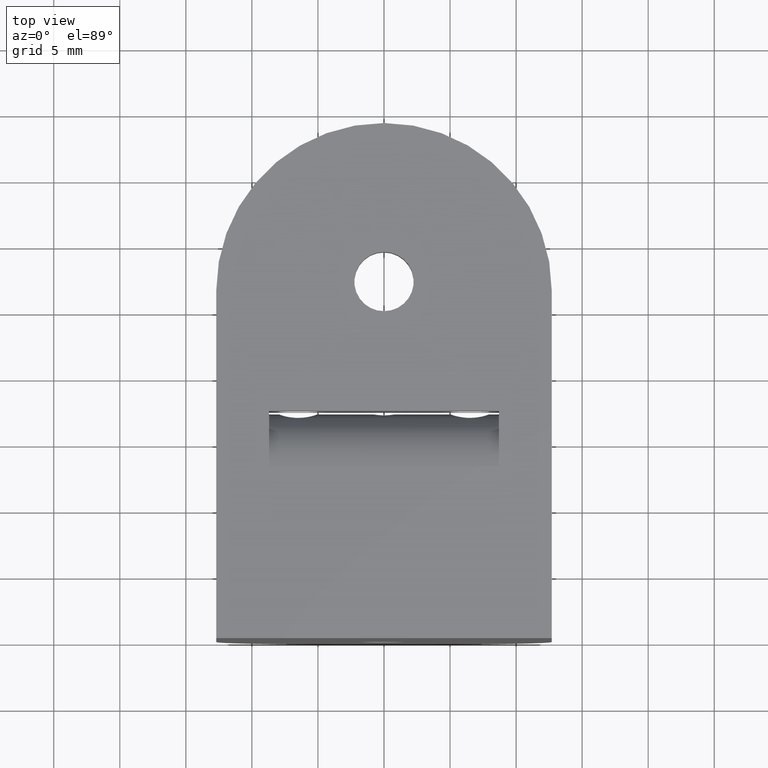
[diagram: clean part render]
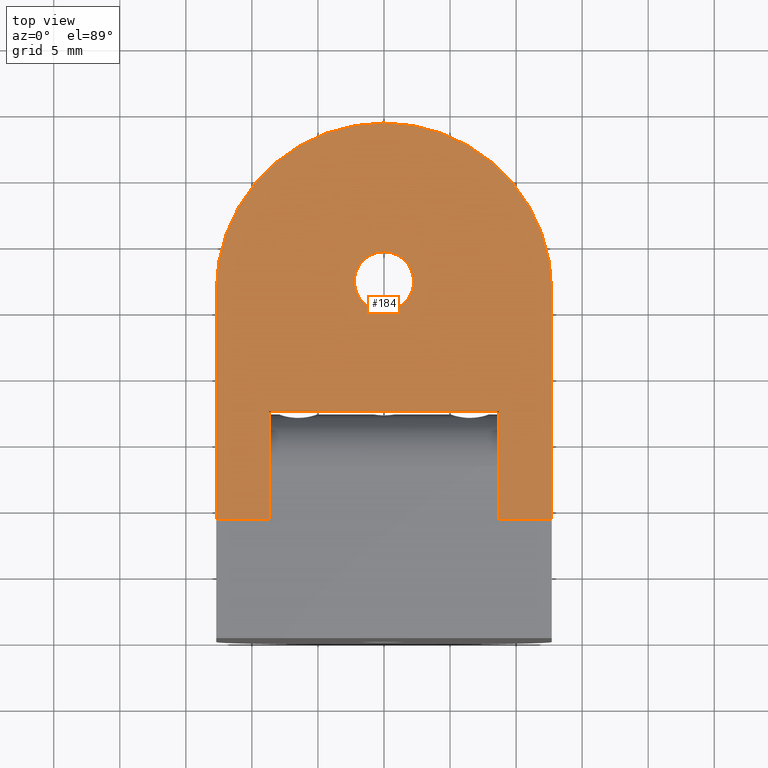
[diagram: same view with one face highlighted and labeled with its STEP entity id]
A machine part, top view. The second image highlights one B-rep face of the part: STEP entity #184.
In plain terms, the highlighted planar face has unit normal (0, -0, 1).
Its self-contained STEP definition (entity closure, byte-faithful):
#24 = VERTEX_POINT ( 'NONE', #1323 ) ;
#29 = CARTESIAN_POINT ( 'NONE',  ( -8.699999999999985100, 8.999999999999996400, 3.469446951953614200E-015 ) ) ;
#50 = AXIS2_PLACEMENT_3D ( 'NONE', #2465, #1046, #2704 ) ;
#62 = VERTEX_POINT ( 'NONE', #1346 ) ;
#133 = DIRECTION ( 'NONE',  ( -1.734720147809981100E-016, -1.206061786844441000E-031, -1.000000000000000000 ) ) ;
#184 = ADVANCED_FACE ( 'NONE', ( #1511, #291 ), #2815, .T. ) ;
#206 = CARTESIAN_POINT ( 'NONE',  ( -8.699999999999983300, 17.19999999999999200, 3.469446951953614200E-015 ) ) ;
#235 = CARTESIAN_POINT ( 'NONE',  ( -12.69999999999999200, 8.999999999999996400, 3.469446951953614200E-015 ) ) ;
#261 = VECTOR ( 'NONE', #1467, 1000.000000000000000 ) ;
#291 = FACE_OUTER_BOUND ( 'NONE', #2915, .T. ) ;
#338 = CARTESIAN_POINT ( 'NONE',  ( -12.69999999999999200, 8.999999999999996400, 3.469446951953614200E-015 ) ) ;
#380 = VERTEX_POINT ( 'NONE', #2231 ) ;
#436 = AXIS2_PLACEMENT_3D ( 'NONE', #1939, #523, #2874 ) ;
#442 = DIRECTION ( 'NONE',  ( 1.000000000000000000, -1.738121547108111300E-016, -1.734720147809985500E-016 ) ) ;
#493 = ORIENTED_EDGE ( 'NONE', *, *, #1977, .T. ) ;
#519 = VERTEX_POINT ( 'NONE', #206 ) ;
#523 = DIRECTION ( 'NONE',  ( 1.734720147809981100E-016, -1.507577233555550300E-031, 1.000000000000000000 ) ) ;
#551 = LINE ( 'NONE', #235, #1733 ) ;
#629 = VERTEX_POINT ( 'NONE', #29 ) ;
#644 = ORIENTED_EDGE ( 'NONE', *, *, #2673, .F. ) ;
#662 = DIRECTION ( 'NONE',  ( -1.000000000000000000, 7.411540321789116800E-017, 1.734720147809985500E-016 ) ) ;
#710 = CARTESIAN_POINT ( 'NONE',  ( 8.700000000000015300, 17.19999999999999200, 0.0000000000000000000 ) ) ;
#742 = CARTESIAN_POINT ( 'NONE',  ( -12.69999999999998500, 26.30000000000000400, 3.469446951953614200E-015 ) ) ;
#774 = CIRCLE ( 'NONE', #50, 12.69999999999999900 ) ;
#807 = VERTEX_POINT ( 'NONE', #338 ) ;
#808 = CIRCLE ( 'NONE', #2279, 2.247899999999996900 ) ;
#858 = EDGE_CURVE ( 'NONE', #1979, #519, #1841, .T. ) ;
#866 = DIRECTION ( 'NONE',  ( -4.051086181743855900E-016, -1.000000000000000000, -8.048271515569820400E-032 ) ) ;
#882 = LINE ( 'NONE', #1450, #261 ) ;
#969 = EDGE_LOOP ( 'NONE', ( #1151, #2411 ) ) ;
#1046 = DIRECTION ( 'NONE',  ( 1.734720147809981100E-016, 1.206061786844441000E-031, 1.000000000000000000 ) ) ;
#1112 = ORIENTED_EDGE ( 'NONE', *, *, #858, .F. ) ;
#1121 = LINE ( 'NONE', #1314, #2316 ) ;
#1127 = CARTESIAN_POINT ( 'NONE',  ( -8.699999999999985100, 8.999999999999996400, 3.469446951953614200E-015 ) ) ;
#1151 = ORIENTED_EDGE ( 'NONE', *, *, #2209, .T. ) ;
#1162 = VERTEX_POINT ( 'NONE', #742 ) ;
#1202 = VECTOR ( 'NONE', #662, 1000.000000000000000 ) ;
#1217 = ORIENTED_EDGE ( 'NONE', *, *, #1842, .T. ) ;
#1287 = DIRECTION ( 'NONE',  ( -1.734720147809981100E-016, -1.206061786844441000E-031, -1.000000000000000000 ) ) ;
#1314 = CARTESIAN_POINT ( 'NONE',  ( 12.70000000000001900, 38.99999999999996400, 0.0000000000000000000 ) ) ;
#1320 = CARTESIAN_POINT ( 'NONE',  ( -12.69999999999998000, 38.99999999999999300, 3.469446951953614200E-015 ) ) ;
#1321 = EDGE_CURVE ( 'NONE', #1162, #807, #2254, .T. ) ;
#1323 = CARTESIAN_POINT ( 'NONE',  ( 1.681593426952508600E-014, 38.99999999999999300, 1.734723475976807100E-015 ) ) ;
#1346 = CARTESIAN_POINT ( 'NONE',  ( 12.70000000000001700, 8.999999999999992900, 0.0000000000000000000 ) ) ;
#1366 = DIRECTION ( 'NONE',  ( -1.738121547108113700E-016, -1.000000000000000000, -1.213184216936841500E-031 ) ) ;
#1409 = DIRECTION ( 'NONE',  ( 1.000000000000000000, -1.738121547108111300E-016, -1.734720147809985500E-016 ) ) ;
#1430 = VERTEX_POINT ( 'NONE', #1838 ) ;
#1450 = CARTESIAN_POINT ( 'NONE',  ( 8.700000000000013500, 8.999999999999994700, 0.0000000000000000000 ) ) ;
#1467 = DIRECTION ( 'NONE',  ( 1.738121547108113500E-016, 1.000000000000000000, 1.206061786844440300E-031 ) ) ;
#1468 = VECTOR ( 'NONE', #3038, 1000.000000000000000 ) ;
#1511 = FACE_BOUND ( 'NONE', #969, .T. ) ;
#1552 = CARTESIAN_POINT ( 'NONE',  ( 1.473018841299535200E-014, 26.99999999999999600, 1.734723475976807100E-015 ) ) ;
#1573 = ORIENTED_EDGE ( 'NONE', *, *, #2848, .T. ) ;
#1625 = VECTOR ( 'NONE', #866, 1000.000000000000000 ) ;
#1688 = ORIENTED_EDGE ( 'NONE', *, *, #2426, .T. ) ;
#1717 = AXIS2_PLACEMENT_3D ( 'NONE', #2709, #1287, #2959 ) ;
#1733 = VECTOR ( 'NONE', #1409, 1000.000000000000000 ) ;
#1795 = DIRECTION ( 'NONE',  ( 1.738121547108120400E-016, 1.000000000000000000, 1.713537029571812400E-031 ) ) ;
#1838 = CARTESIAN_POINT ( 'NONE',  ( 1.512090075556978700E-014, 29.24789999999999400, 1.734723475976807500E-015 ) ) ;
#1841 = LINE ( 'NONE', #2949, #1202 ) ;
#1842 = EDGE_CURVE ( 'NONE', #24, #1162, #2355, .T. ) ;
#1858 = CARTESIAN_POINT ( 'NONE',  ( -12.69999999999999200, 8.999999999999996400, 3.469446951953614200E-015 ) ) ;
#1939 = CARTESIAN_POINT ( 'NONE',  ( -12.69999999999999200, 8.999999999999996400, 3.469446951953614200E-015 ) ) ;
#1977 = EDGE_CURVE ( 'NONE', #807, #629, #551, .T. ) ;
#1979 = VERTEX_POINT ( 'NONE', #710 ) ;
#2001 = CARTESIAN_POINT ( 'NONE',  ( 1.429540244518943400E-014, 24.75209999999999900, 1.734723475976807500E-015 ) ) ;
#2097 = LINE ( 'NONE', #1127, #1468 ) ;
#2174 = VECTOR ( 'NONE', #442, 1000.000000000000000 ) ;
#2176 = CIRCLE ( 'NONE', #1717, 2.247899999999996900 ) ;
#2209 = EDGE_CURVE ( 'NONE', #1430, #2871, #2176, .T. ) ;
#2231 = CARTESIAN_POINT ( 'NONE',  ( 12.70000000000001900, 26.29999999999999000, 0.0000000000000000000 ) ) ;
#2254 = LINE ( 'NONE', #1320, #1625 ) ;
#2279 = AXIS2_PLACEMENT_3D ( 'NONE', #1552, #133, #1795 ) ;
#2293 = VERTEX_POINT ( 'NONE', #2727 ) ;
#2316 = VECTOR ( 'NONE', #2503, 1000.000000000000000 ) ;
#2355 = CIRCLE ( 'NONE', #3041, 12.69999999999999900 ) ;
#2411 = ORIENTED_EDGE ( 'NONE', *, *, #2919, .T. ) ;
#2426 = EDGE_CURVE ( 'NONE', #2293, #62, #2797, .T. ) ;
#2433 = EDGE_CURVE ( 'NONE', #519, #629, #2097, .T. ) ;
#2465 = CARTESIAN_POINT ( 'NONE',  ( 1.807796685665139600E-014, 26.29999999999999700, 1.734723475976807100E-015 ) ) ;
#2503 = DIRECTION ( 'NONE',  ( 5.816392297902422400E-017, 1.000000000000000000, 1.406679104488169600E-031 ) ) ;
#2545 = CARTESIAN_POINT ( 'NONE',  ( 1.340577829468719800E-014, 26.29999999999999700, 1.734723475976807100E-015 ) ) ;
#2673 = EDGE_CURVE ( 'NONE', #2293, #1979, #882, .T. ) ;
#2704 = DIRECTION ( 'NONE',  ( -1.738121547108112500E-016, -1.000000000000000000, -1.213184216936841500E-031 ) ) ;
#2709 = CARTESIAN_POINT ( 'NONE',  ( 1.473018841299535200E-014, 26.99999999999999600, 1.734723475976807100E-015 ) ) ;
#2713 = ORIENTED_EDGE ( 'NONE', *, *, #2433, .F. ) ;
#2727 = CARTESIAN_POINT ( 'NONE',  ( 8.700000000000013500, 8.999999999999994700, 0.0000000000000000000 ) ) ;
#2786 = DIRECTION ( 'NONE',  ( 1.734720147809981100E-016, 1.206061786844441000E-031, 1.000000000000000000 ) ) ;
#2797 = LINE ( 'NONE', #1858, #2174 ) ;
#2815 = PLANE ( 'NONE',  #436 ) ;
#2848 = EDGE_CURVE ( 'NONE', #380, #24, #774, .T. ) ;
#2871 = VERTEX_POINT ( 'NONE', #2001 ) ;
#2874 = DIRECTION ( 'NONE',  ( -1.738121547108113500E-016, -1.000000000000000000, -1.206061786844440300E-031 ) ) ;
#2887 = ORIENTED_EDGE ( 'NONE', *, *, #1321, .T. ) ;
#2915 = EDGE_LOOP ( 'NONE', ( #1573, #1217, #2887, #493, #2713, #1112, #644, #1688, #3064 ) ) ;
#2919 = EDGE_CURVE ( 'NONE', #2871, #1430, #808, .T. ) ;
#2949 = CARTESIAN_POINT ( 'NONE',  ( -8.699999999999983300, 17.19999999999999200, 3.469446951953614200E-015 ) ) ;
#2959 = DIRECTION ( 'NONE',  ( 1.738121547108120400E-016, 1.000000000000000000, 1.713537029571812400E-031 ) ) ;
#2983 = EDGE_CURVE ( 'NONE', #62, #380, #1121, .T. ) ;
#3038 = DIRECTION ( 'NONE',  ( -1.738121547108113500E-016, -1.000000000000000000, -1.206061786844440300E-031 ) ) ;
#3041 = AXIS2_PLACEMENT_3D ( 'NONE', #2545, #2786, #1366 ) ;
#3064 = ORIENTED_EDGE ( 'NONE', *, *, #2983, .T. ) ;